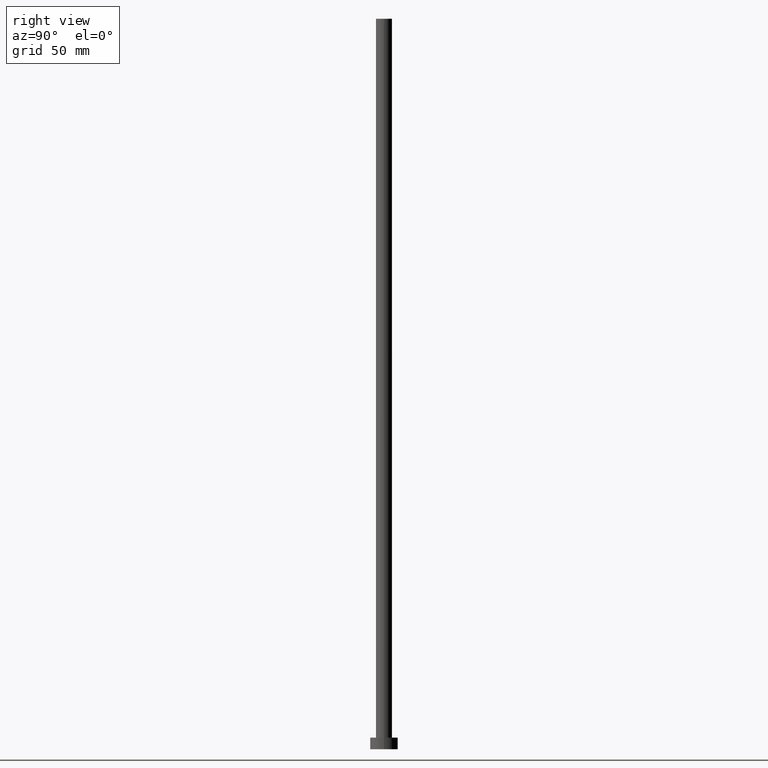
[diagram: clean part render]
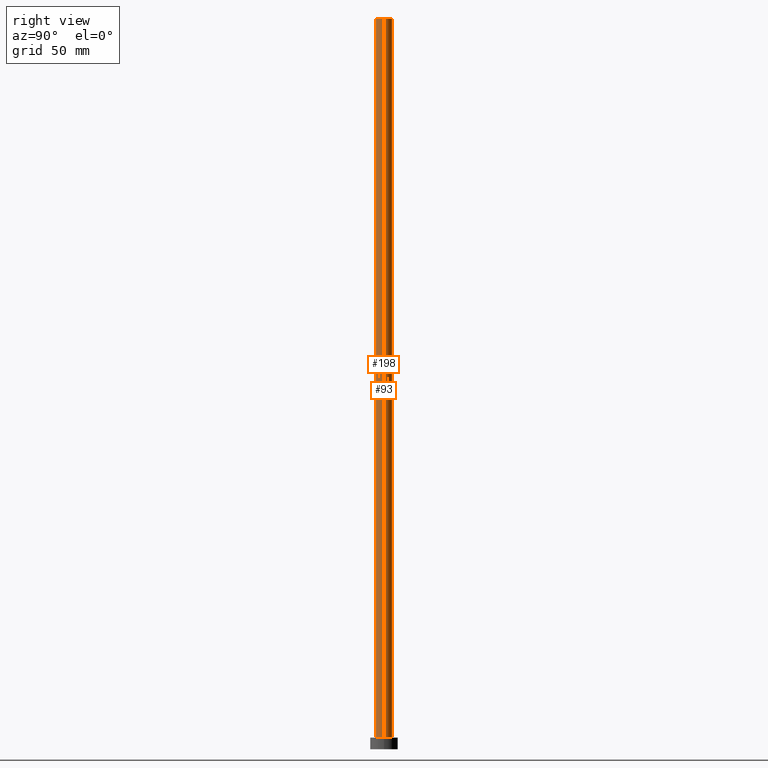
[diagram: same view with one multi-face feature highlighted, each face labeled with its STEP entity id]
A machine part, right view. The highlighted faces form ONE feature: a constant-radius fillet chain: 2 tangent blend faces with common blend radius 3.5 mm. The faces share edges in the B-rep.
Their STEP definitions:
[1] entity #93 (Cylinder):
#9 = ORIENTED_EDGE ( 'NONE', *, *, #158, .T. ) ;
#12 = VERTEX_POINT ( 'NONE', #225 ) ;
#16 = DIRECTION ( 'NONE',  ( -0.000000000000000000, -0.000000000000000000, -1.000000000000000000 ) ) ;
#17 = LINE ( 'NONE', #92, #18 ) ;
#18 = VECTOR ( 'NONE', #22, 1000.000000000000000 ) ;
#22 = DIRECTION ( 'NONE',  ( -0.000000000000000000, -0.000000000000000000, -1.000000000000000000 ) ) ;
#23 = VECTOR ( 'NONE', #16, 1000.000000000000000 ) ;
#27 = CARTESIAN_POINT ( 'NONE',  ( 3.500000000000000000, 4.286263797015736595E-16, 315.0000000000000000 ) ) ;
#29 = VERTEX_POINT ( 'NONE', #141 ) ;
#31 = ORIENTED_EDGE ( 'NONE', *, *, #79, .T. ) ;
#35 = CARTESIAN_POINT ( 'NONE',  ( 0.000000000000000000, 0.000000000000000000, 5.000000000000000000 ) ) ;
#65 = VERTEX_POINT ( 'NONE', #27 ) ;
#67 = VERTEX_POINT ( 'NONE', #109 ) ;
#68 = AXIS2_PLACEMENT_3D ( 'NONE', #171, #169, #96 ) ;
#71 = ORIENTED_EDGE ( 'NONE', *, *, #119, .F. ) ;
#79 = EDGE_CURVE ( 'NONE', #65, #12, #17, .T. ) ;
#81 = ORIENTED_EDGE ( 'NONE', *, *, #195, .F. ) ;
#91 = DIRECTION ( 'NONE',  ( 1.000000000000000000, 0.000000000000000000, 0.000000000000000000 ) ) ;
#92 = CARTESIAN_POINT ( 'NONE',  ( 3.500000000000000000, 4.286263797015736595E-16, 315.0000000000000000 ) ) ;
#93 = ADVANCED_FACE ( 'NONE', ( #139 ), #210, .T. ) ;
#96 = DIRECTION ( 'NONE',  ( -1.000000000000000000, 0.000000000000000000, 0.000000000000000000 ) ) ;
#109 = CARTESIAN_POINT ( 'NONE',  ( -3.500000000000000000, 0.000000000000000000, 315.0000000000000000 ) ) ;
#113 = CIRCLE ( 'NONE', #138, 3.500000000000000000 ) ;
#117 = AXIS2_PLACEMENT_3D ( 'NONE', #35, #249, #194 ) ;
#119 = EDGE_CURVE ( 'NONE', #67, #29, #254, .T. ) ;
#138 = AXIS2_PLACEMENT_3D ( 'NONE', #151, #192, #91 ) ;
#139 = FACE_OUTER_BOUND ( 'NONE', #189, .T. ) ;
#141 = CARTESIAN_POINT ( 'NONE',  ( -3.500000000000000000, 0.000000000000000000, 5.000000000000000000 ) ) ;
#151 = CARTESIAN_POINT ( 'NONE',  ( 0.000000000000000000, 0.000000000000000000, 315.0000000000000000 ) ) ;
#158 = EDGE_CURVE ( 'NONE', #12, #29, #231, .T. ) ;
#169 = DIRECTION ( 'NONE',  ( -0.000000000000000000, -0.000000000000000000, -1.000000000000000000 ) ) ;
#171 = CARTESIAN_POINT ( 'NONE',  ( 0.000000000000000000, 0.000000000000000000, 315.0000000000000000 ) ) ;
#189 = EDGE_LOOP ( 'NONE', ( #81, #31, #9, #71 ) ) ;
#192 = DIRECTION ( 'NONE',  ( 0.000000000000000000, 0.000000000000000000, 1.000000000000000000 ) ) ;
#194 = DIRECTION ( 'NONE',  ( 1.000000000000000000, 0.000000000000000000, 0.000000000000000000 ) ) ;
#195 = EDGE_CURVE ( 'NONE', #65, #67, #113, .T. ) ;
#210 = CYLINDRICAL_SURFACE ( 'NONE', #68, 3.500000000000000000 ) ;
#225 = CARTESIAN_POINT ( 'NONE',  ( 3.500000000000000000, 4.286263797015736595E-16, 5.000000000000000000 ) ) ;
#230 = CARTESIAN_POINT ( 'NONE',  ( -3.500000000000000000, 0.000000000000000000, 315.0000000000000000 ) ) ;
#231 = CIRCLE ( 'NONE', #117, 3.500000000000000000 ) ;
#249 = DIRECTION ( 'NONE',  ( 0.000000000000000000, 0.000000000000000000, 1.000000000000000000 ) ) ;
#254 = LINE ( 'NONE', #230, #23 ) ;
[2] entity #198 (Cylinder):
#5 = CARTESIAN_POINT ( 'NONE',  ( 0.000000000000000000, 0.000000000000000000, 5.000000000000000000 ) ) ;
#12 = VERTEX_POINT ( 'NONE', #225 ) ;
#16 = DIRECTION ( 'NONE',  ( -0.000000000000000000, -0.000000000000000000, -1.000000000000000000 ) ) ;
#17 = LINE ( 'NONE', #92, #18 ) ;
#18 = VECTOR ( 'NONE', #22, 1000.000000000000000 ) ;
#19 = DIRECTION ( 'NONE',  ( -1.000000000000000000, 0.000000000000000000, 0.000000000000000000 ) ) ;
#22 = DIRECTION ( 'NONE',  ( -0.000000000000000000, -0.000000000000000000, -1.000000000000000000 ) ) ;
#23 = VECTOR ( 'NONE', #16, 1000.000000000000000 ) ;
#27 = CARTESIAN_POINT ( 'NONE',  ( 3.500000000000000000, 4.286263797015736595E-16, 315.0000000000000000 ) ) ;
#29 = VERTEX_POINT ( 'NONE', #141 ) ;
#32 = AXIS2_PLACEMENT_3D ( 'NONE', #76, #116, #19 ) ;
#34 = DIRECTION ( 'NONE',  ( 0.000000000000000000, 0.000000000000000000, 1.000000000000000000 ) ) ;
#40 = EDGE_CURVE ( 'NONE', #29, #12, #215, .T. ) ;
#41 = EDGE_LOOP ( 'NONE', ( #69, #63, #220, #150 ) ) ;
#63 = ORIENTED_EDGE ( 'NONE', *, *, #197, .F. ) ;
#65 = VERTEX_POINT ( 'NONE', #27 ) ;
#67 = VERTEX_POINT ( 'NONE', #109 ) ;
#69 = ORIENTED_EDGE ( 'NONE', *, *, #79, .F. ) ;
#76 = CARTESIAN_POINT ( 'NONE',  ( 0.000000000000000000, 0.000000000000000000, 315.0000000000000000 ) ) ;
#77 = CYLINDRICAL_SURFACE ( 'NONE', #32, 3.500000000000000000 ) ;
#79 = EDGE_CURVE ( 'NONE', #65, #12, #17, .T. ) ;
#80 = AXIS2_PLACEMENT_3D ( 'NONE', #137, #34, #252 ) ;
#92 = CARTESIAN_POINT ( 'NONE',  ( 3.500000000000000000, 4.286263797015736595E-16, 315.0000000000000000 ) ) ;
#109 = CARTESIAN_POINT ( 'NONE',  ( -3.500000000000000000, 0.000000000000000000, 315.0000000000000000 ) ) ;
#114 = FACE_OUTER_BOUND ( 'NONE', #41, .T. ) ;
#116 = DIRECTION ( 'NONE',  ( -0.000000000000000000, -0.000000000000000000, -1.000000000000000000 ) ) ;
#119 = EDGE_CURVE ( 'NONE', #67, #29, #254, .T. ) ;
#124 = DIRECTION ( 'NONE',  ( 1.000000000000000000, 0.000000000000000000, 0.000000000000000000 ) ) ;
#137 = CARTESIAN_POINT ( 'NONE',  ( 0.000000000000000000, 0.000000000000000000, 315.0000000000000000 ) ) ;
#141 = CARTESIAN_POINT ( 'NONE',  ( -3.500000000000000000, 0.000000000000000000, 5.000000000000000000 ) ) ;
#150 = ORIENTED_EDGE ( 'NONE', *, *, #40, .T. ) ;
#161 = DIRECTION ( 'NONE',  ( 0.000000000000000000, 0.000000000000000000, 1.000000000000000000 ) ) ;
#197 = EDGE_CURVE ( 'NONE', #67, #65, #255, .T. ) ;
#198 = ADVANCED_FACE ( 'NONE', ( #114 ), #77, .T. ) ;
#215 = CIRCLE ( 'NONE', #235, 3.500000000000000000 ) ;
#220 = ORIENTED_EDGE ( 'NONE', *, *, #119, .T. ) ;
#225 = CARTESIAN_POINT ( 'NONE',  ( 3.500000000000000000, 4.286263797015736595E-16, 5.000000000000000000 ) ) ;
#230 = CARTESIAN_POINT ( 'NONE',  ( -3.500000000000000000, 0.000000000000000000, 315.0000000000000000 ) ) ;
#235 = AXIS2_PLACEMENT_3D ( 'NONE', #5, #161, #124 ) ;
#252 = DIRECTION ( 'NONE',  ( 1.000000000000000000, 0.000000000000000000, 0.000000000000000000 ) ) ;
#254 = LINE ( 'NONE', #230, #23 ) ;
#255 = CIRCLE ( 'NONE', #80, 3.500000000000000000 ) ;